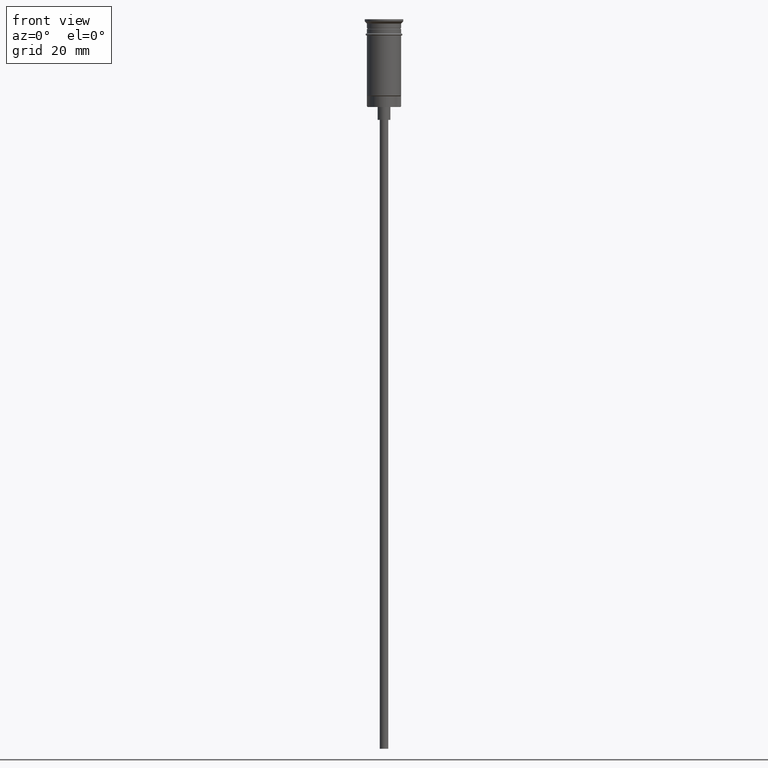
[diagram: clean part render]
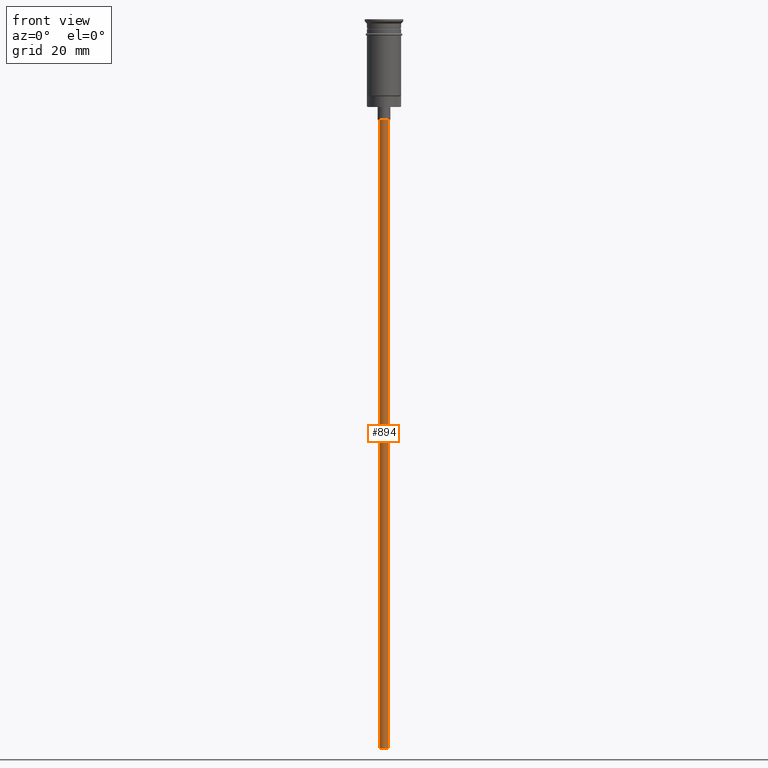
[diagram: same view with one face highlighted and labeled with its STEP entity id]
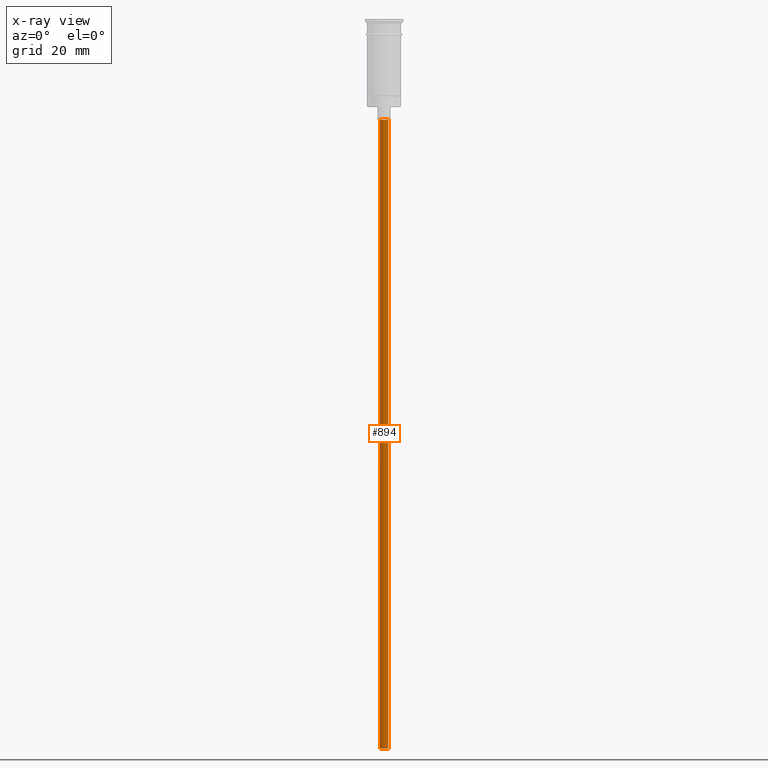
[diagram: x-ray of the same camera — body ghosted, the highlighted face saturated]
A machine part, front view. The second image highlights one B-rep face of the part: STEP entity #894.
The next image is the same camera in x-ray: the body ghosted, the highlighted face saturated — about 0% of this face is hidden behind the body in this view.
In plain terms, the highlighted cylindrical surface (edge-blend (fillet) strip) has radius 1 mm, axis along (-0, -0, 1).
Its self-contained STEP definition (entity closure, byte-faithful):
#10 = AXIS2_PLACEMENT_3D ( 'NONE', #453, #333, #941 ) ;
#34 = LINE ( 'NONE', #151, #1265 ) ;
#101 = EDGE_CURVE ( 'NONE', #602, #1399, #34, .T. ) ;
#102 = AXIS2_PLACEMENT_3D ( 'NONE', #635, #389, #515 ) ;
#147 = CIRCLE ( 'NONE', #102, 0.9999999999999997780 ) ;
#151 = CARTESIAN_POINT ( 'NONE',  ( 0.9999999999999997780, 0.000000000000000000, -170.4999999999999716 ) ) ;
#171 = VERTEX_POINT ( 'NONE', #197 ) ;
#197 = CARTESIAN_POINT ( 'NONE',  ( -0.9999999999999997780, 1.224646799147352961E-16, -170.4999999999999716 ) ) ;
#203 = ORIENTED_EDGE ( 'NONE', *, *, #557, .F. ) ;
#333 = DIRECTION ( 'NONE',  ( -0.000000000000000000, -0.000000000000000000, 1.000000000000000000 ) ) ;
#357 = VECTOR ( 'NONE', #609, 1000.000000000000000 ) ;
#372 = CARTESIAN_POINT ( 'NONE',  ( -0.9999999999999997780, 1.224646799147352961E-16, -23.49999999999999645 ) ) ;
#373 = CARTESIAN_POINT ( 'NONE',  ( 0.9999999999999997780, 0.000000000000000000, -170.4999999999999716 ) ) ;
#389 = DIRECTION ( 'NONE',  ( 0.000000000000000000, 0.000000000000000000, -1.000000000000000000 ) ) ;
#453 = CARTESIAN_POINT ( 'NONE',  ( 0.000000000000000000, 0.000000000000000000, -170.4999999999999716 ) ) ;
#515 = DIRECTION ( 'NONE',  ( -1.000000000000000000, 0.000000000000000000, 0.000000000000000000 ) ) ;
#533 = DIRECTION ( 'NONE',  ( -0.000000000000000000, -0.000000000000000000, 1.000000000000000000 ) ) ;
#557 = EDGE_CURVE ( 'NONE', #602, #171, #147, .T. ) ;
#602 = VERTEX_POINT ( 'NONE', #373 ) ;
#609 = DIRECTION ( 'NONE',  ( -0.000000000000000000, -0.000000000000000000, 1.000000000000000000 ) ) ;
#635 = CARTESIAN_POINT ( 'NONE',  ( 0.000000000000000000, 0.000000000000000000, -170.4999999999999716 ) ) ;
#737 = LINE ( 'NONE', #1077, #357 ) ;
#816 = AXIS2_PLACEMENT_3D ( 'NONE', #1004, #1391, #988 ) ;
#892 = EDGE_LOOP ( 'NONE', ( #1121, #203, #1192, #1570 ) ) ;
#894 = ADVANCED_FACE ( 'NONE', ( #1057 ), #1554, .T. ) ;
#941 = DIRECTION ( 'NONE',  ( 1.000000000000000000, 0.000000000000000000, 0.000000000000000000 ) ) ;
#988 = DIRECTION ( 'NONE',  ( -1.000000000000000000, 0.000000000000000000, 0.000000000000000000 ) ) ;
#1004 = CARTESIAN_POINT ( 'NONE',  ( 0.000000000000000000, 0.000000000000000000, -23.49999999999999645 ) ) ;
#1057 = FACE_OUTER_BOUND ( 'NONE', #892, .T. ) ;
#1062 = VERTEX_POINT ( 'NONE', #372 ) ;
#1077 = CARTESIAN_POINT ( 'NONE',  ( -0.9999999999999997780, 1.224646799147352961E-16, -170.4999999999999716 ) ) ;
#1103 = CARTESIAN_POINT ( 'NONE',  ( 0.9999999999999997780, 0.000000000000000000, -23.49999999999999645 ) ) ;
#1121 = ORIENTED_EDGE ( 'NONE', *, *, #1243, .F. ) ;
#1192 = ORIENTED_EDGE ( 'NONE', *, *, #101, .T. ) ;
#1243 = EDGE_CURVE ( 'NONE', #171, #1062, #737, .T. ) ;
#1265 = VECTOR ( 'NONE', #533, 1000.000000000000000 ) ;
#1367 = EDGE_CURVE ( 'NONE', #1399, #1062, #1511, .T. ) ;
#1391 = DIRECTION ( 'NONE',  ( 0.000000000000000000, 0.000000000000000000, -1.000000000000000000 ) ) ;
#1399 = VERTEX_POINT ( 'NONE', #1103 ) ;
#1511 = CIRCLE ( 'NONE', #816, 0.9999999999999997780 ) ;
#1554 = CYLINDRICAL_SURFACE ( 'NONE', #10, 0.9999999999999997780 ) ;
#1570 = ORIENTED_EDGE ( 'NONE', *, *, #1367, .T. ) ;